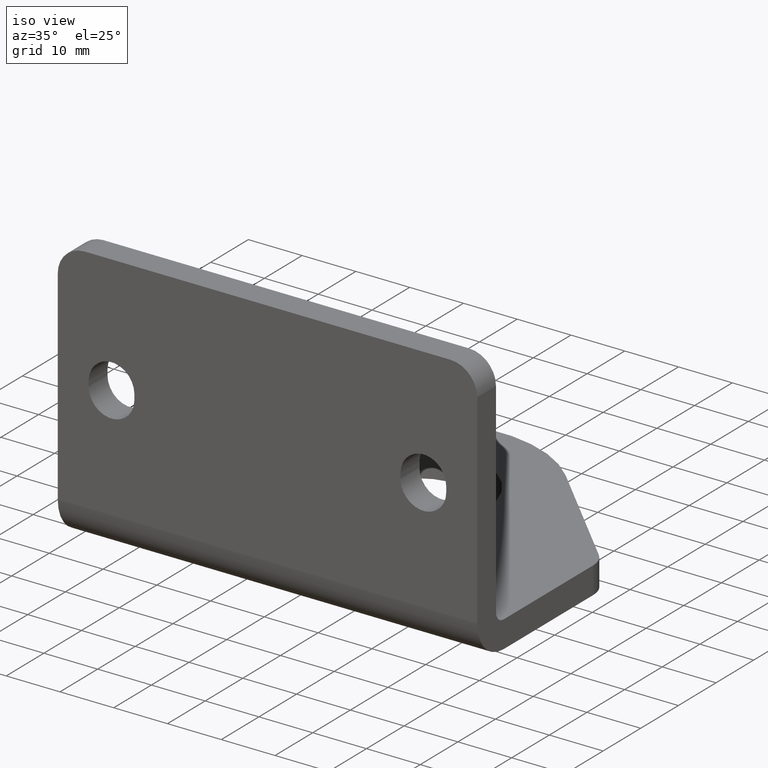
[diagram: clean part render]
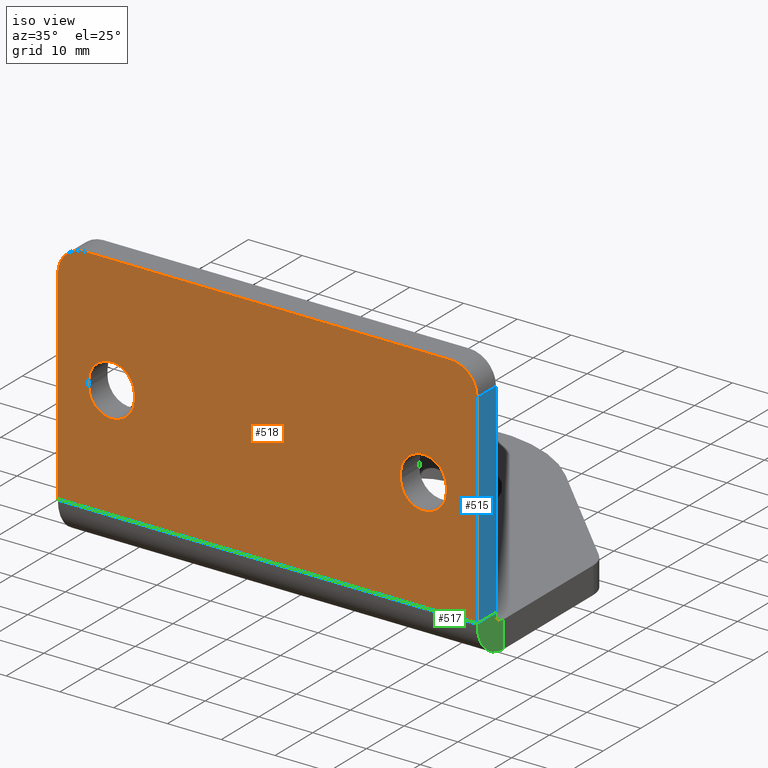
[diagram: same view with three faces highlighted in distinct colors, each labeled with its STEP entity id]
A machine part, iso view with three faces highlighted in distinct colors.
Their STEP definitions:

[orange] entity #518 — the highlighted planar face has unit normal (-0, 1, 0).
#17=FACE_BOUND('',#87,.T.);
#18=FACE_BOUND('',#88,.T.);
#31=PLANE('',#586);
#55=FACE_OUTER_BOUND('',#86,.T.);
#86=EDGE_LOOP('',(#421,#422,#423,#424,#425,#426));
#87=EDGE_LOOP('',(#427,#428,#429,#430));
#88=EDGE_LOOP('',(#431,#432,#433,#434));
#106=LINE('',#778,#155);
#109=LINE('',#787,#158);
#114=LINE('',#802,#163);
#117=LINE('',#811,#166);
#122=LINE('',#826,#171);
#128=LINE('',#842,#177);
#129=LINE('',#845,#178);
#131=LINE('',#852,#180);
#155=VECTOR('',#620,10.);
#158=VECTOR('',#631,10.);
#163=VECTOR('',#644,10.);
#166=VECTOR('',#655,10.);
#171=VECTOR('',#668,10.);
#177=VECTOR('',#684,10.);
#178=VECTOR('',#687,10.);
#180=VECTOR('',#695,4.19999999999999);
#201=CIRCLE('',#555,4.25);
#203=CIRCLE('',#559,4.25);
#205=CIRCLE('',#563,4.25);
#207=CIRCLE('',#567,4.25);
#208=CIRCLE('',#570,5.);
#211=CIRCLE('',#576,5.);
#226=VERTEX_POINT('',#768);
#227=VERTEX_POINT('',#770);
#229=VERTEX_POINT('',#776);
#231=VERTEX_POINT('',#782);
#234=VERTEX_POINT('',#792);
#235=VERTEX_POINT('',#794);
#237=VERTEX_POINT('',#800);
#239=VERTEX_POINT('',#806);
#240=VERTEX_POINT('',#813);
#241=VERTEX_POINT('',#814);
#245=VERTEX_POINT('',#824);
#249=VERTEX_POINT('',#836);
#250=VERTEX_POINT('',#840);
#251=VERTEX_POINT('',#844);
#272=EDGE_CURVE('',#227,#226,#201,.T.);
#276=EDGE_CURVE('',#226,#229,#106,.T.);
#279=EDGE_CURVE('',#229,#231,#203,.T.);
#281=EDGE_CURVE('',#231,#227,#109,.T.);
#284=EDGE_CURVE('',#235,#234,#205,.T.);
#288=EDGE_CURVE('',#234,#237,#114,.T.);
#291=EDGE_CURVE('',#237,#239,#207,.T.);
#293=EDGE_CURVE('',#239,#235,#117,.T.);
#294=EDGE_CURVE('',#240,#241,#208,.T.);
#300=EDGE_CURVE('',#245,#240,#122,.T.);
#305=EDGE_CURVE('',#249,#245,#211,.T.);
#308=EDGE_CURVE('',#250,#249,#128,.T.);
#309=EDGE_CURVE('',#250,#251,#129,.T.);
#313=EDGE_CURVE('',#241,#251,#131,.T.);
#421=ORIENTED_EDGE('',*,*,#294,.F.);
#422=ORIENTED_EDGE('',*,*,#300,.F.);
#423=ORIENTED_EDGE('',*,*,#305,.F.);
#424=ORIENTED_EDGE('',*,*,#308,.F.);
#425=ORIENTED_EDGE('',*,*,#309,.T.);
#426=ORIENTED_EDGE('',*,*,#313,.F.);
#427=ORIENTED_EDGE('',*,*,#272,.T.);
#428=ORIENTED_EDGE('',*,*,#276,.T.);
#429=ORIENTED_EDGE('',*,*,#279,.T.);
#430=ORIENTED_EDGE('',*,*,#281,.T.);
#431=ORIENTED_EDGE('',*,*,#284,.T.);
#432=ORIENTED_EDGE('',*,*,#288,.T.);
#433=ORIENTED_EDGE('',*,*,#291,.T.);
#434=ORIENTED_EDGE('',*,*,#293,.T.);
#518=ADVANCED_FACE('',(#55,#17,#18),#31,.F.);
#555=AXIS2_PLACEMENT_3D('',#771,#613,#614);
#559=AXIS2_PLACEMENT_3D('',#784,#626,#627);
#563=AXIS2_PLACEMENT_3D('',#795,#637,#638);
#567=AXIS2_PLACEMENT_3D('',#808,#650,#651);
#570=AXIS2_PLACEMENT_3D('',#815,#658,#659);
#576=AXIS2_PLACEMENT_3D('',#837,#678,#679);
#586=AXIS2_PLACEMENT_3D('',#862,#707,#708);
#613=DIRECTION('center_axis',(-4.2579230508707E-18,1.,5.54443622414857E-15));
#614=DIRECTION('ref_axis',(-1.,-4.25792305082435E-18,-8.35932630305997E-15));
#620=DIRECTION('',(-8.88178419700128E-15,-5.54443622414857E-15,1.));
#626=DIRECTION('center_axis',(-4.2579230508707E-18,1.,5.54443622414857E-15));
#627=DIRECTION('ref_axis',(1.,4.25792305081856E-18,9.40424209094251E-15));
#631=DIRECTION('',(8.88178419700128E-15,5.54443622414857E-15,-1.));
#637=DIRECTION('center_axis',(-4.2579230508707E-18,1.,5.54443622414857E-15));
#638=DIRECTION('ref_axis',(-1.,-4.25792305082435E-18,-8.35932630305997E-15));
#644=DIRECTION('',(-8.88178419700128E-15,-5.54443622414857E-15,1.));
#650=DIRECTION('center_axis',(-4.2579230508707E-18,1.,5.54443622414857E-15));
#651=DIRECTION('ref_axis',(1.,4.25792305081856E-18,9.40424209094251E-15));
#655=DIRECTION('',(8.88178419700128E-15,5.54443622414857E-15,-1.));
#658=DIRECTION('center_axis',(-4.2579230508707E-18,1.,5.54443622414857E-15));
#659=DIRECTION('ref_axis',(0.707106781186548,-3.91749764568875E-15,0.707106781186548));
#668=DIRECTION('',(1.,0.,0.));
#678=DIRECTION('center_axis',(-4.2579230508707E-18,1.,5.54443622414857E-15));
#679=DIRECTION('ref_axis',(-0.707106781186548,-3.92351925821483E-15,0.707106781186548));
#684=DIRECTION('',(0.,-5.39030285815812E-15,1.));
#687=DIRECTION('',(1.,4.2579230508707E-18,2.29514947909257E-32));
#695=DIRECTION('',(0.,5.32907051820075E-15,-1.));
#707=DIRECTION('center_axis',(-4.2579230508707E-18,1.,5.54443622414857E-15));
#708=DIRECTION('ref_axis',(1.,4.2579230508707E-18,2.36077828028847E-32));
#768=CARTESIAN_POINT('',(84.3542548020733,221.400291811824,27.5));
#770=CARTESIAN_POINT('',(92.8542548020733,221.400291811824,27.5));
#771=CARTESIAN_POINT('Origin',(88.6042548020733,221.400291811824,27.5));
#776=CARTESIAN_POINT('',(84.3542548020733,221.400291811824,28.5));
#778=CARTESIAN_POINT('',(84.3542548020733,221.400291811824,26.8506638568655));
#782=CARTESIAN_POINT('',(92.8542548020733,221.400291811824,28.5));
#784=CARTESIAN_POINT('Origin',(88.6042548020733,221.400291811824,28.5));
#787=CARTESIAN_POINT('',(92.8542548020733,221.400291811824,26.3506638568656));
#792=CARTESIAN_POINT('',(26.3542548020733,221.400291811824,27.5));
#794=CARTESIAN_POINT('',(34.8542548020733,221.400291811824,27.5));
#795=CARTESIAN_POINT('Origin',(30.6042548020733,221.400291811824,27.5));
#800=CARTESIAN_POINT('',(26.3542548020733,221.400291811824,28.5));
#802=CARTESIAN_POINT('',(26.3542548020733,221.400291811824,26.8506638568652));
#806=CARTESIAN_POINT('',(34.8542548020733,221.400291811824,28.5));
#808=CARTESIAN_POINT('Origin',(30.6042548020733,221.400291811824,28.5));
#811=CARTESIAN_POINT('',(34.8542548020734,221.400291811824,26.3506638568653));
#813=CARTESIAN_POINT('',(93.6042548020733,221.400291811824,50.));
#814=CARTESIAN_POINT('',(98.6042548020733,221.400291811824,45.));
#815=CARTESIAN_POINT('Origin',(93.6042548020733,221.400291811824,45.));
#824=CARTESIAN_POINT('',(25.6042546020733,221.400291811824,50.));
#826=CARTESIAN_POINT('',(20.6042546020733,221.400291811824,50.));
#836=CARTESIAN_POINT('',(20.6042546020733,221.400291811824,45.));
#837=CARTESIAN_POINT('Origin',(25.6042546020733,221.400291811824,45.));
#840=CARTESIAN_POINT('',(20.6042546020733,221.400291811824,6.99999999999999));
#842=CARTESIAN_POINT('',(20.6042546020733,221.400291811824,6.99999999999999));
#844=CARTESIAN_POINT('',(98.6042548020733,221.400291811824,6.99999999999999));
#845=CARTESIAN_POINT('',(59.6042547020733,221.400291811824,6.99999999999996));
#852=CARTESIAN_POINT('',(98.6042548020733,221.400291811824,-6.1946891450771));
#862=CARTESIAN_POINT('Origin',(59.6042547020733,221.400291811824,25.2013277137308));

[blue] entity #515 — the highlighted planar face has unit normal (1, 0, 0).
#28=PLANE('',#581);
#52=FACE_OUTER_BOUND('',#83,.T.);
#83=EDGE_LOOP('',(#409,#410,#411,#412));
#118=LINE('',#817,#167);
#123=LINE('',#829,#172);
#131=LINE('',#852,#180);
#132=LINE('',#853,#181);
#167=VECTOR('',#660,10.);
#172=VECTOR('',#671,4.19999999999999);
#180=VECTOR('',#695,4.19999999999999);
#181=VECTOR('',#696,10.);
#241=VERTEX_POINT('',#814);
#242=VERTEX_POINT('',#816);
#246=VERTEX_POINT('',#828);
#251=VERTEX_POINT('',#844);
#295=EDGE_CURVE('',#241,#242,#118,.T.);
#301=EDGE_CURVE('',#242,#246,#123,.T.);
#313=EDGE_CURVE('',#241,#251,#131,.T.);
#314=EDGE_CURVE('',#251,#246,#132,.T.);
#409=ORIENTED_EDGE('',*,*,#295,.F.);
#410=ORIENTED_EDGE('',*,*,#313,.T.);
#411=ORIENTED_EDGE('',*,*,#314,.T.);
#412=ORIENTED_EDGE('',*,*,#301,.F.);
#515=ADVANCED_FACE('',(#52),#28,.T.);
#581=AXIS2_PLACEMENT_3D('',#851,#693,#694);
#660=DIRECTION('',(0.,1.,5.39030285815812E-15));
#671=DIRECTION('',(0.,5.32907051820075E-15,-1.));
#693=DIRECTION('center_axis',(1.,0.,0.));
#694=DIRECTION('ref_axis',(0.,-1.,-5.41788836017076E-15));
#695=DIRECTION('',(0.,5.32907051820075E-15,-1.));
#696=DIRECTION('',(0.,1.,5.39030285815812E-15));
#814=CARTESIAN_POINT('',(98.6042548020733,221.400291811824,45.));
#816=CARTESIAN_POINT('',(98.6042548020733,226.400291811824,45.));
#817=CARTESIAN_POINT('',(98.6042548020733,226.400291811824,45.));
#828=CARTESIAN_POINT('',(98.6042548020733,226.400291811824,7.00000000000003));
#829=CARTESIAN_POINT('',(98.6042548020733,226.400291811824,-6.19468914507706));
#844=CARTESIAN_POINT('',(98.6042548020733,221.400291811824,6.99999999999999));
#851=CARTESIAN_POINT('Origin',(98.6042548020733,226.400291811824,7.00000000000003));
#852=CARTESIAN_POINT('',(98.6042548020733,221.400291811824,-6.1946891450771));
#853=CARTESIAN_POINT('',(98.6042548020733,225.300291811824,7.00000000000003));

[green] entity #517 — the highlighted planar face has unit normal (1, 0, 0).
#30=PLANE('',#584);
#54=FACE_OUTER_BOUND('',#85,.T.);
#85=EDGE_LOOP('',(#417,#418,#419,#420));
#132=LINE('',#853,#181);
#134=LINE('',#860,#183);
#181=VECTOR('',#696,10.);
#183=VECTOR('',#704,10.);
#213=CIRCLE('',#580,6.99999999999999);
#215=CIRCLE('',#585,1.99999999999999);
#246=VERTEX_POINT('',#828);
#251=VERTEX_POINT('',#844);
#253=VERTEX_POINT('',#848);
#255=VERTEX_POINT('',#859);
#312=EDGE_CURVE('',#251,#253,#213,.T.);
#314=EDGE_CURVE('',#251,#246,#132,.T.);
#317=EDGE_CURVE('',#255,#253,#134,.T.);
#318=EDGE_CURVE('',#246,#255,#215,.T.);
#417=ORIENTED_EDGE('',*,*,#314,.F.);
#418=ORIENTED_EDGE('',*,*,#312,.T.);
#419=ORIENTED_EDGE('',*,*,#317,.F.);
#420=ORIENTED_EDGE('',*,*,#318,.F.);
#517=ADVANCED_FACE('',(#54),#30,.T.);
#580=AXIS2_PLACEMENT_3D('',#850,#691,#692);
#584=AXIS2_PLACEMENT_3D('',#858,#702,#703);
#585=AXIS2_PLACEMENT_3D('',#861,#705,#706);
#691=DIRECTION('center_axis',(1.,0.,0.));
#692=DIRECTION('ref_axis',(0.,-1.,-5.39251183389362E-15));
#696=DIRECTION('',(0.,1.,5.39030285815812E-15));
#702=DIRECTION('center_axis',(1.,0.,0.));
#703=DIRECTION('ref_axis',(0.,0.,-1.));
#704=DIRECTION('',(0.,0.,-1.));
#705=DIRECTION('center_axis',(1.,0.,0.));
#706=DIRECTION('ref_axis',(0.,-1.,-5.5511151231258E-15));
#828=CARTESIAN_POINT('',(98.6042548020733,226.400291811824,7.00000000000003));
#844=CARTESIAN_POINT('',(98.6042548020733,221.400291811824,6.99999999999999));
#848=CARTESIAN_POINT('',(98.6042548020733,228.400291811824,0.));
#850=CARTESIAN_POINT('Origin',(98.6042548020733,228.400291811824,7.));
#853=CARTESIAN_POINT('',(98.6042548020733,225.300291811824,7.00000000000003));
#858=CARTESIAN_POINT('Origin',(98.6042548020733,221.400291811824,6.99999999999996));
#859=CARTESIAN_POINT('',(98.6042548020733,228.400291811824,5.));
#860=CARTESIAN_POINT('',(98.6042548020733,228.400291811824,2.5));
#861=CARTESIAN_POINT('Origin',(98.6042548020733,228.400291811824,7.));